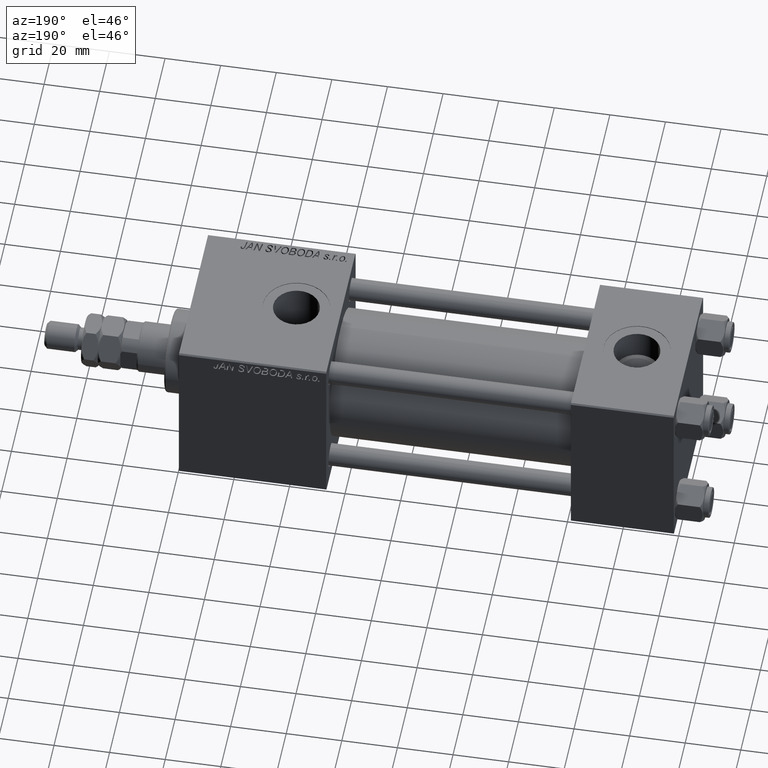
[diagram: clean part render]
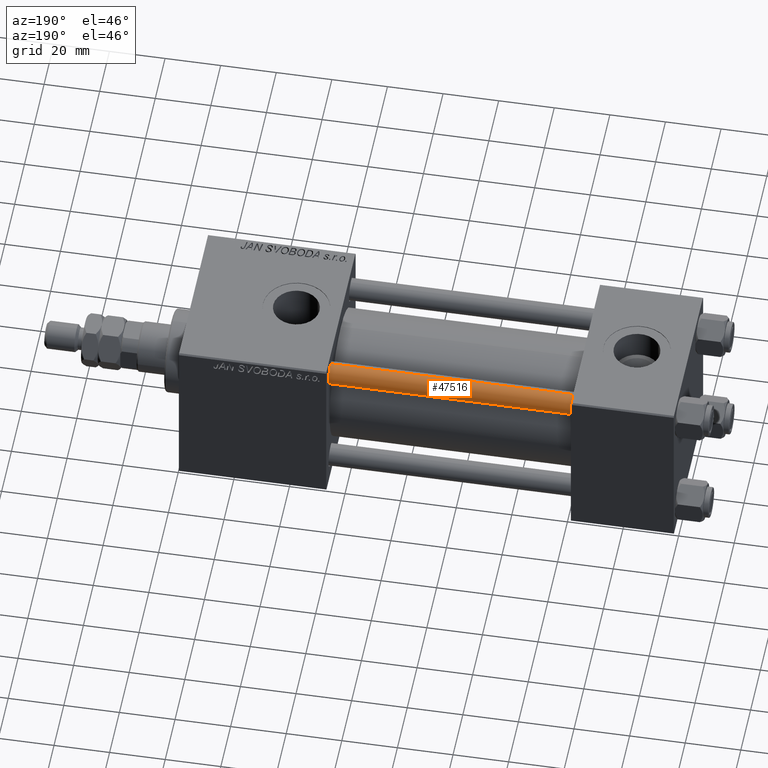
[diagram: same view with one face highlighted and labeled with its STEP entity id]
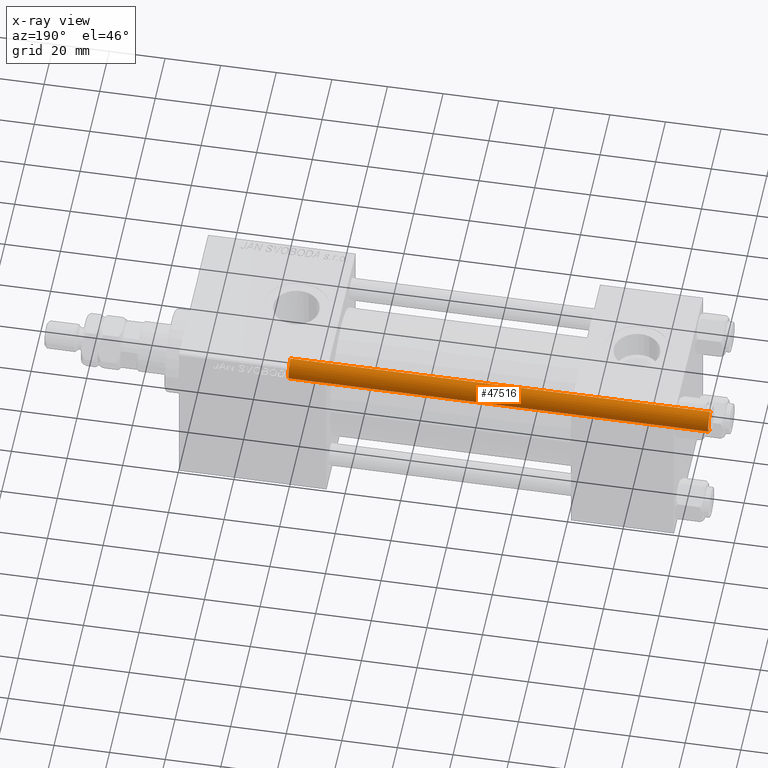
[diagram: x-ray of the same camera — body ghosted, the highlighted face saturated]
A machine part, auxiliary view. The second image highlights one B-rep face of the part: STEP entity #47516.
The next image is the same camera in x-ray: the body ghosted, the highlighted face saturated — about 0% of this face is hidden behind the body in this view.
In plain terms, the highlighted cylindrical surface (edge-blend (fillet) strip) has radius 4 mm, axis along (-1, 0, 0).
Its self-contained STEP definition (entity closure, byte-faithful):
#5146 = DIRECTION ( 'NONE',  ( 1.000000000000000000, 0.000000000000000000, 0.000000000000000000 ) ) ;
#5341 = ORIENTED_EDGE ( 'NONE', *, *, #32619, .T. ) ;
#6530 = EDGE_CURVE ( 'NONE', #40637, #42763, #25906, .T. ) ;
#7414 = DIRECTION ( 'NONE',  ( -0.000000000000000000, -0.000000000000000000, -1.000000000000000000 ) ) ;
#8166 = EDGE_LOOP ( 'NONE', ( #19137, #22835, #5341, #47397 ) ) ;
#8987 = AXIS2_PLACEMENT_3D ( 'NONE', #51087, #30022, #13273 ) ;
#10841 = CARTESIAN_POINT ( 'NONE',  ( 4.000000000000000000, 4.898587196589412829E-16, 151.5000000000000284 ) ) ;
#13273 = DIRECTION ( 'NONE',  ( 1.000000000000000000, 0.000000000000000000, 0.000000000000000000 ) ) ;
#14098 = CARTESIAN_POINT ( 'NONE',  ( 4.000000000000000000, 4.898587196589412829E-16, 0.5000000000000281997 ) ) ;
#14949 = VERTEX_POINT ( 'NONE', #15773 ) ;
#14950 = VECTOR ( 'NONE', #7414, 1000.000000000000000 ) ;
#15389 = CYLINDRICAL_SURFACE ( 'NONE', #34733, 4.000000000000000000 ) ;
#15773 = CARTESIAN_POINT ( 'NONE',  ( -4.000000000000000000, 0.000000000000000000, 0.5000000000000281997 ) ) ;
#18695 = VECTOR ( 'NONE', #37888, 1000.000000000000000 ) ;
#19137 = ORIENTED_EDGE ( 'NONE', *, *, #6530, .T. ) ;
#20710 = AXIS2_PLACEMENT_3D ( 'NONE', #50564, #29771, #5146 ) ;
#22835 = ORIENTED_EDGE ( 'NONE', *, *, #37243, .T. ) ;
#23515 = FACE_OUTER_BOUND ( 'NONE', #8166, .T. ) ;
#25906 = CIRCLE ( 'NONE', #20710, 4.000000000000000000 ) ;
#27837 = DIRECTION ( 'NONE',  ( -0.000000000000000000, -0.000000000000000000, -1.000000000000000000 ) ) ;
#27970 = CARTESIAN_POINT ( 'NONE',  ( -4.000000000000000000, 0.000000000000000000, 152.0000000000000000 ) ) ;
#28886 = CIRCLE ( 'NONE', #8987, 4.000000000000000000 ) ;
#29109 = EDGE_CURVE ( 'NONE', #40637, #14949, #40679, .T. ) ;
#29245 = LINE ( 'NONE', #29509, #18695 ) ;
#29509 = CARTESIAN_POINT ( 'NONE',  ( 4.000000000000000000, 4.898587196589412829E-16, 152.0000000000000000 ) ) ;
#29771 = DIRECTION ( 'NONE',  ( 0.000000000000000000, 0.000000000000000000, -1.000000000000000000 ) ) ;
#30022 = DIRECTION ( 'NONE',  ( -0.000000000000000000, -0.000000000000000000, 1.000000000000000000 ) ) ;
#31894 = DIRECTION ( 'NONE',  ( -1.000000000000000000, 0.000000000000000000, 0.000000000000000000 ) ) ;
#32619 = EDGE_CURVE ( 'NONE', #49782, #14949, #28886, .T. ) ;
#34733 = AXIS2_PLACEMENT_3D ( 'NONE', #40014, #27837, #31894 ) ;
#36816 = CARTESIAN_POINT ( 'NONE',  ( -4.000000000000000000, 0.000000000000000000, 151.5000000000000284 ) ) ;
#37243 = EDGE_CURVE ( 'NONE', #42763, #49782, #29245, .T. ) ;
#37888 = DIRECTION ( 'NONE',  ( -0.000000000000000000, -0.000000000000000000, -1.000000000000000000 ) ) ;
#40014 = CARTESIAN_POINT ( 'NONE',  ( 0.000000000000000000, 0.000000000000000000, 152.0000000000000000 ) ) ;
#40637 = VERTEX_POINT ( 'NONE', #36816 ) ;
#40679 = LINE ( 'NONE', #27970, #14950 ) ;
#42763 = VERTEX_POINT ( 'NONE', #10841 ) ;
#47397 = ORIENTED_EDGE ( 'NONE', *, *, #29109, .F. ) ;
#47516 = ADVANCED_FACE ( 'NONE', ( #23515 ), #15389, .T. ) ;
#49782 = VERTEX_POINT ( 'NONE', #14098 ) ;
#50564 = CARTESIAN_POINT ( 'NONE',  ( 0.000000000000000000, 0.000000000000000000, 151.5000000000000284 ) ) ;
#51087 = CARTESIAN_POINT ( 'NONE',  ( 0.000000000000000000, 0.000000000000000000, 0.5000000000000281997 ) ) ;